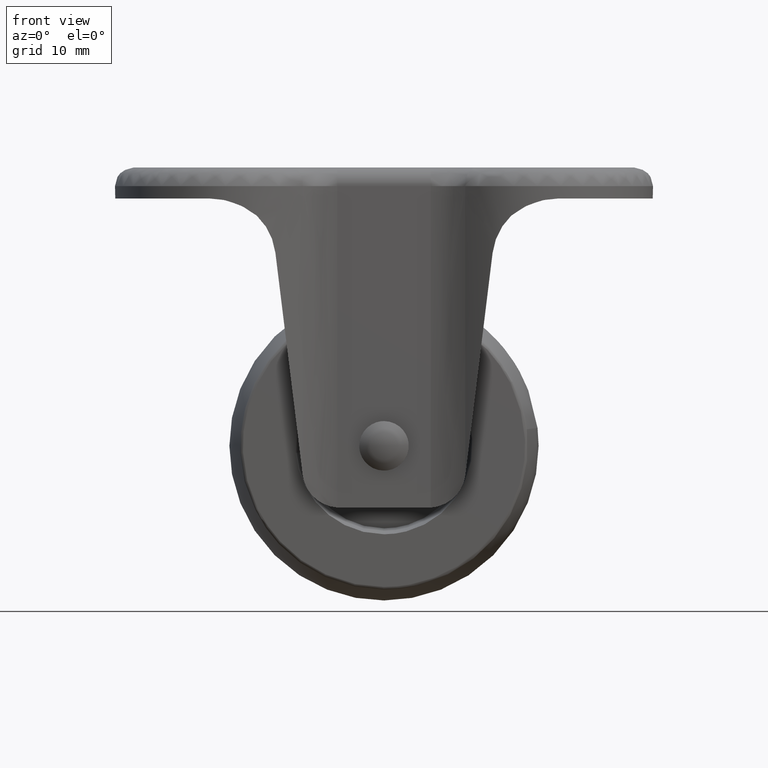
[diagram: clean part render]
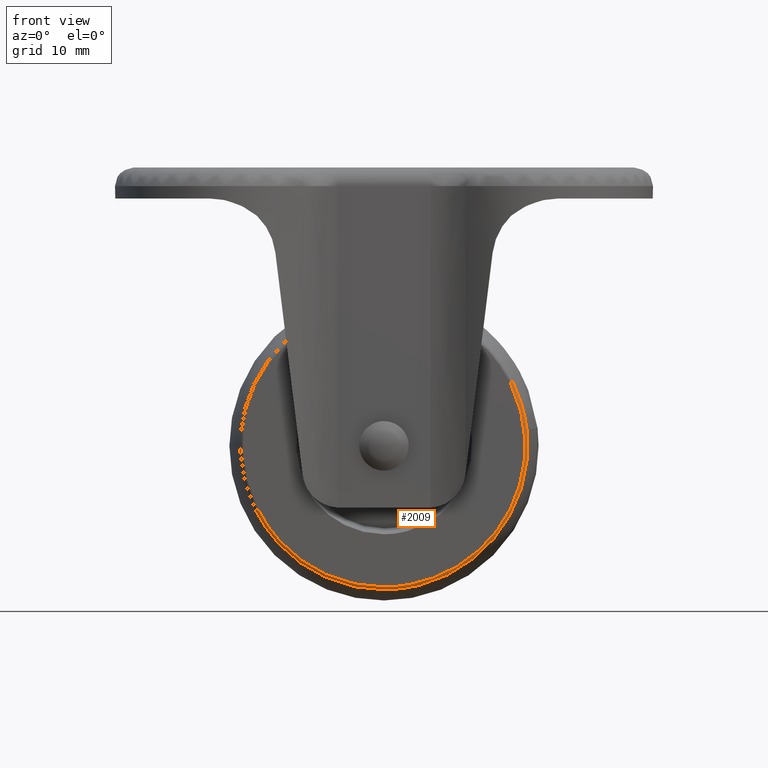
[diagram: same view with one face highlighted and labeled with its STEP entity id]
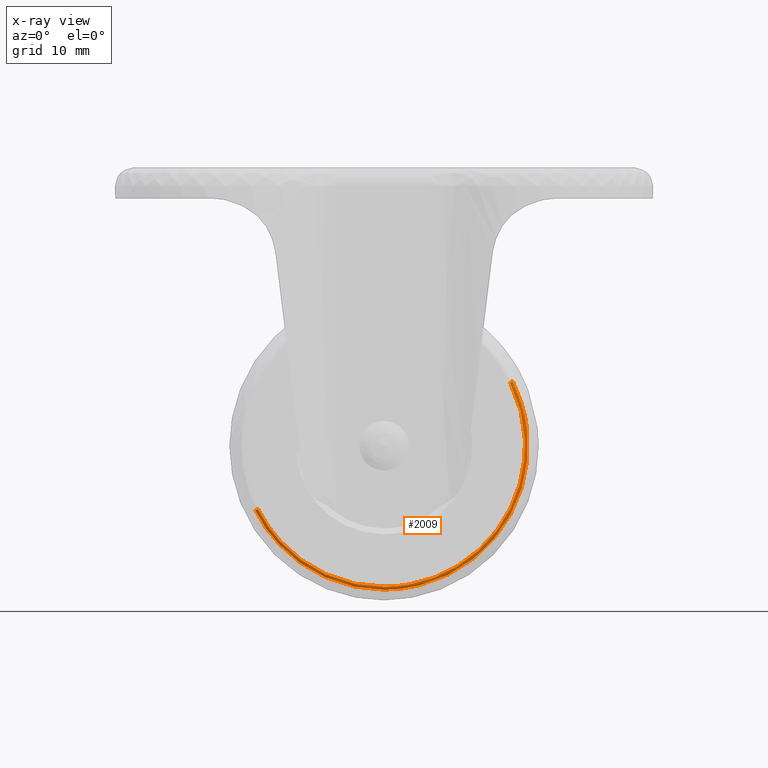
[diagram: x-ray of the same camera — body ghosted, the highlighted face saturated]
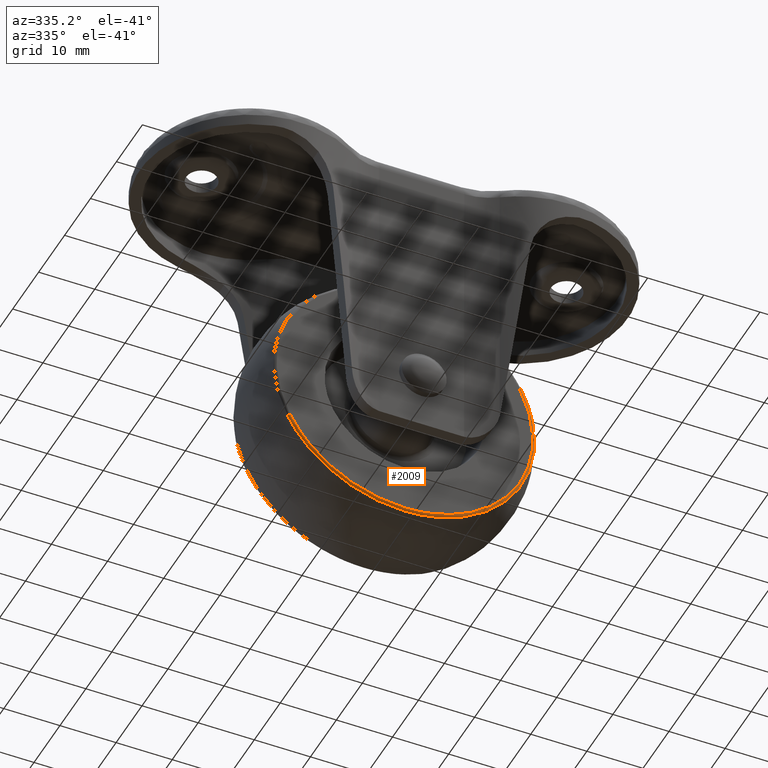
[diagram: same view with one face highlighted and labeled with its STEP entity id]
A machine part, front view. The second image highlights one B-rep face of the part: STEP entity #2009.
The next image is the same camera in x-ray: the body ghosted, the highlighted face saturated — about 0% of this face is hidden behind the body in this view.
A second angle (auxiliary view) of the same face is appended — the face is thin or edge-on in the first view.
In plain terms, the highlighted face is a freeform B-spline surface patch.
Its self-contained STEP definition (entity closure, byte-faithful):
#1810=CARTESIAN_POINT('',(-20.793559880707150,-7.714287980951607,-55.430802378788357));
#1811=VERTEX_POINT('',#1810);
#1829=CARTESIAN_POINT('',(-20.389763544364460,-8.0,-55.228243518780097));
#1830=VERTEX_POINT('',#1829);
#1831=CARTESIAN_POINT('',(-20.389763544364456,-8.000000000000002,-55.228243518780104));
#1832=CARTESIAN_POINT('',(-20.672419720376965,-7.999999989242102,-55.370034088973952));
#1833=CARTESIAN_POINT('',(-20.793559880707150,-7.714287980951608,-55.430802378788357));
#1841=(BOUNDED_CURVE()B_SPLINE_CURVE(2,(#1831,#1832,#1833),.UNSPECIFIED.,.F.,.U.)B_SPLINE_CURVE_WITH_KNOTS((3,3),(-1.647808163218500,-0.340607049565617),.UNSPECIFIED.)CURVE()GEOMETRIC_REPRESENTATION_ITEM()RATIONAL_B_SPLINE_CURVE((0.904712394928970,0.765672541374256,0.907198851891717))REPRESENTATION_ITEM(''));
#1842=EDGE_CURVE('',#1830,#1811,#1841,.T.);
#1861=CARTESIAN_POINT('',(20.389763544364460,-8.0,-34.771756481219903));
#1862=VERTEX_POINT('',#1861);
#1876=CARTESIAN_POINT('',(20.793559452463729,-7.714287723902791,-34.569197836034462));
#1877=VERTEX_POINT('',#1876);
#1878=CARTESIAN_POINT('',(20.389763544364467,-8.0,-34.771756481219903));
#1879=CARTESIAN_POINT('',(20.672419737227020,-7.999999989242100,-34.629965902573453));
#1880=CARTESIAN_POINT('',(20.793559452463732,-7.714287723902791,-34.569197836034469));
#1888=(BOUNDED_CURVE()B_SPLINE_CURVE(2,(#1878,#1879,#1880),.UNSPECIFIED.,.F.,.U.)B_SPLINE_CURVE_WITH_KNOTS((3,3),(-1.647808163218488,-0.340606983615137),.UNSPECIFIED.)CURVE()GEOMETRIC_REPRESENTATION_ITEM()RATIONAL_B_SPLINE_CURVE((0.904712394928968,0.765672534359464,0.907198866172195))REPRESENTATION_ITEM(''));
#1889=EDGE_CURVE('',#1862,#1877,#1888,.T.);
#1907=CARTESIAN_POINT('',(20.366062648828368,-7.999296419251280,-34.783645708472591));
#1908=CARTESIAN_POINT('',(30.582416940355760,-7.999296419251278,-55.149708357300959));
#1909=CARTESIAN_POINT('',(10.216354291527407,-7.999296419251280,-65.366062648828375));
#1910=CARTESIAN_POINT('',(-10.149708357300954,-7.999296419251278,-75.582416940355770));
#1911=CARTESIAN_POINT('',(-20.366062648828368,-7.999296419251280,-55.216354291527409));
#1912=CARTESIAN_POINT('',(20.682605666378794,-8.018103350997489,-34.624856271772586));
#1913=CARTESIAN_POINT('',(31.057749394606187,-8.018103350997485,-55.307461938151377));
#1914=CARTESIAN_POINT('',(10.375143728227409,-8.018103350997489,-65.682605666378805));
#1915=CARTESIAN_POINT('',(-10.307461938151381,-8.018103350997485,-76.057749394606148));
#1916=CARTESIAN_POINT('',(-20.682605666378794,-8.018103350997489,-55.375143728227414));
#1917=CARTESIAN_POINT('',(20.803123336853670,-7.690097515940402,-34.564400245431536));
#1918=CARTESIAN_POINT('',(31.238723091422120,-7.690097515940400,-55.367523582285230));
#1919=CARTESIAN_POINT('',(10.435599754568450,-7.690097515940402,-65.803123336853673));
#1920=CARTESIAN_POINT('',(-10.367523582285219,-7.690097515940400,-76.238723091422102));
#1921=CARTESIAN_POINT('',(-20.803123336853670,-7.690097515940402,-55.435599754568450));
#1929=(BOUNDED_SURFACE()B_SPLINE_SURFACE(2,2,((#1907,#1912,#1917),(#1908,#1913,#1918),(#1909,#1914,#1919),(#1910,#1915,#1920),(#1911,#1916,#1921)),.UNSPECIFIED.,.F.,.F.,.U.)B_SPLINE_SURFACE_WITH_KNOTS((3,2,3),(3,3),(0.0,38.561362644507710,77.122725289015420),(0.0,0.637263334745560),.UNSPECIFIED.)GEOMETRIC_REPRESENTATION_ITEM()RATIONAL_B_SPLINE_SURFACE(((0.919303738951231,0.750956548851147,0.922039507208400),(0.650045907782564,0.531006468069093,0.651980388068962),(0.919303738951231,0.750956548851147,0.922039507208400),(0.650045907782564,0.531006468069093,0.651980388068962),(0.919303738951231,0.750956548851147,0.922039507208400)))REPRESENTATION_ITEM('')SURFACE());
#1930=CARTESIAN_POINT('',(0.0,-7.714285849069070,-68.263142188361357));
#1931=VERTEX_POINT('',#1930);
#1932=CARTESIAN_POINT('',(0.0,-7.714285849069070,-68.263142188361357));
#1933=CARTESIAN_POINT('',(-14.356394760204827,-7.714285849069070,-68.263142188361371));
#1934=CARTESIAN_POINT('',(-20.793559880707146,-7.714287980951606,-55.430802378788371));
#1942=(BOUNDED_CURVE()B_SPLINE_CURVE(2,(#1932,#1933,#1934),.UNSPECIFIED.,.F.,.U.)B_SPLINE_CURVE_WITH_KNOTS((3,3),(0.500000000000000,0.673769069239604),.UNSPECIFIED.)CURVE()GEOMETRIC_REPRESENTATION_ITEM()RATIONAL_B_SPLINE_CURVE((1.0,0.796416871920778,0.875845349275265))REPRESENTATION_ITEM(''));
#1943=EDGE_CURVE('',#1931,#1811,#1942,.T.);
#1944=ORIENTED_EDGE('',*,*,#1943,.F.);
#1945=CARTESIAN_POINT('',(23.107549890446819,-7.714285848978059,-42.313939215423872));
#1946=VERTEX_POINT('',#1945);
#1947=CARTESIAN_POINT('',(23.107549890446823,-7.714285848978059,-42.313939215423872));
#1948=CARTESIAN_POINT('',(23.263142188361343,-7.714285849069070,-43.652463201250846));
#1949=CARTESIAN_POINT('',(23.263142188361350,-7.714285849069070,-45.0));
#1950=CARTESIAN_POINT('',(23.263142188361350,-7.714285849069070,-68.263142188361357));
#1951=CARTESIAN_POINT('',(0.0,-7.714285849069070,-68.263142188361357));
#1959=(BOUNDED_CURVE()B_SPLINE_CURVE(2,(#1947,#1948,#1949,#1950,#1951),.UNSPECIFIED.,.F.,.U.)B_SPLINE_CURVE_WITH_KNOTS((3,2,3),(0.229999999999036,0.250000000000000,0.500000000000000),.UNSPECIFIED.)CURVE()GEOMETRIC_REPRESENTATION_ITEM()RATIONAL_B_SPLINE_CURVE((0.956886118188762,0.976568542493794,1.0,0.707106781186547,1.0))REPRESENTATION_ITEM(''));
#1960=EDGE_CURVE('',#1946,#1931,#1959,.T.);
#1961=ORIENTED_EDGE('',*,*,#1960,.F.);
#1962=CARTESIAN_POINT('',(20.793559452463732,-7.714287723902791,-34.569197836034455));
#1963=CARTESIAN_POINT('',(22.633692867770467,-7.714286755685641,-38.237459003323607));
#1964=CARTESIAN_POINT('',(23.107549890446819,-7.714285848978061,-42.313939215423872));
#1972=(BOUNDED_CURVE()B_SPLINE_CURVE(2,(#1962,#1963,#1964),.UNSPECIFIED.,.F.,.U.)B_SPLINE_CURVE_WITH_KNOTS((3,3),(0.173769056372673,0.229999999999036),.UNSPECIFIED.)CURVE()GEOMETRIC_REPRESENTATION_ITEM()RATIONAL_B_SPLINE_CURVE((0.875845337512520,0.901548053615109,0.956886118188762))REPRESENTATION_ITEM(''));
#1973=EDGE_CURVE('',#1877,#1946,#1972,.T.);
#1974=ORIENTED_EDGE('',*,*,#1973,.F.);
#1975=ORIENTED_EDGE('',*,*,#1889,.F.);
#1976=CARTESIAN_POINT('',(0.0,-8.0,-67.811387999999994));
#1977=VERTEX_POINT('',#1976);
#1978=CARTESIAN_POINT('',(20.389763544364463,-8.0,-34.771756481219903));
#1979=CARTESIAN_POINT('',(22.811388000000001,-8.0,-39.599208051639678));
#1980=CARTESIAN_POINT('',(22.811388000000001,-8.0,-45.0));
#1981=CARTESIAN_POINT('',(22.811388000000004,-8.0,-67.811387999999994));
#1982=CARTESIAN_POINT('',(0.0,-8.0,-67.811387999999994));
#1990=(BOUNDED_CURVE()B_SPLINE_CURVE(2,(#1978,#1979,#1980,#1981,#1982),.UNSPECIFIED.,.F.,.U.)B_SPLINE_CURVE_WITH_KNOTS((3,2,3),(0.173769062114987,0.250000000000000,0.500000000000000),.UNSPECIFIED.)CURVE()GEOMETRIC_REPRESENTATION_ITEM()RATIONAL_B_SPLINE_CURVE((0.875845342762052,0.910689900918761,1.0,0.707106781186548,1.0))REPRESENTATION_ITEM(''));
#1991=EDGE_CURVE('',#1862,#1977,#1990,.T.);
#1992=ORIENTED_EDGE('',*,*,#1991,.T.);
#1993=CARTESIAN_POINT('',(0.0,-8.0,-67.811387999999994));
#1994=CARTESIAN_POINT('',(-14.077602743644231,-8.0,-67.811387999999994));
#1995=CARTESIAN_POINT('',(-20.389763544364452,-8.0,-55.228243518780111));
#2003=(BOUNDED_CURVE()B_SPLINE_CURVE(2,(#1993,#1994,#1995),.UNSPECIFIED.,.F.,.U.)B_SPLINE_CURVE_WITH_KNOTS((3,3),(0.500000000000000,0.673769062114988),.UNSPECIFIED.)CURVE()GEOMETRIC_REPRESENTATION_ITEM()RATIONAL_B_SPLINE_CURVE((1.0,0.796416880267786,0.875845342762053))REPRESENTATION_ITEM(''));
#2004=EDGE_CURVE('',#1977,#1830,#2003,.T.);
#2005=ORIENTED_EDGE('',*,*,#2004,.T.);
#2006=ORIENTED_EDGE('',*,*,#1842,.T.);
#2007=EDGE_LOOP('',(#1944,#1961,#1974,#1975,#1992,#2005,#2006));
#2008=FACE_OUTER_BOUND('',#2007,.T.);
#2009=ADVANCED_FACE('',(#2008),#1929,.T.);